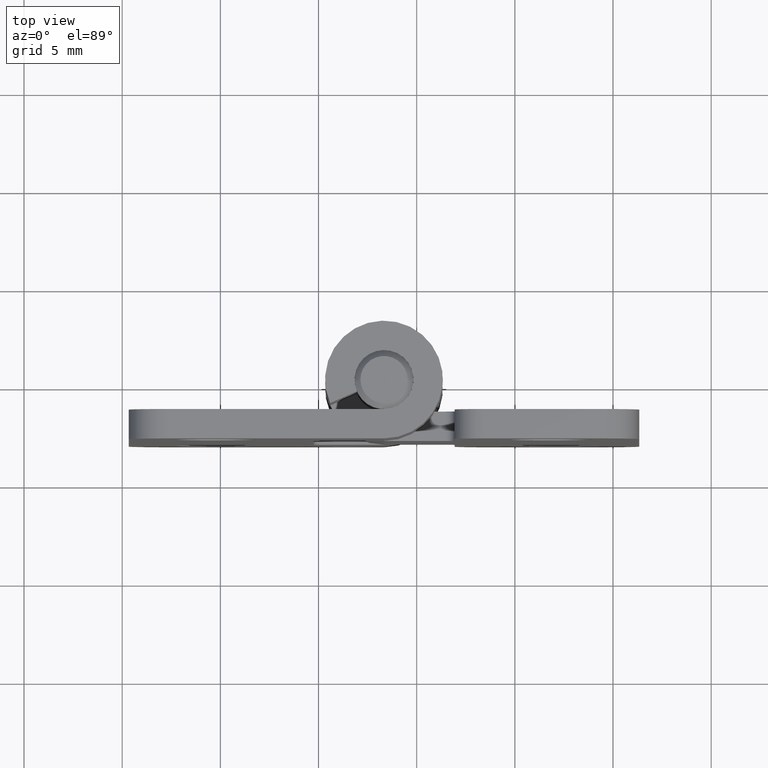
[diagram: clean part render]
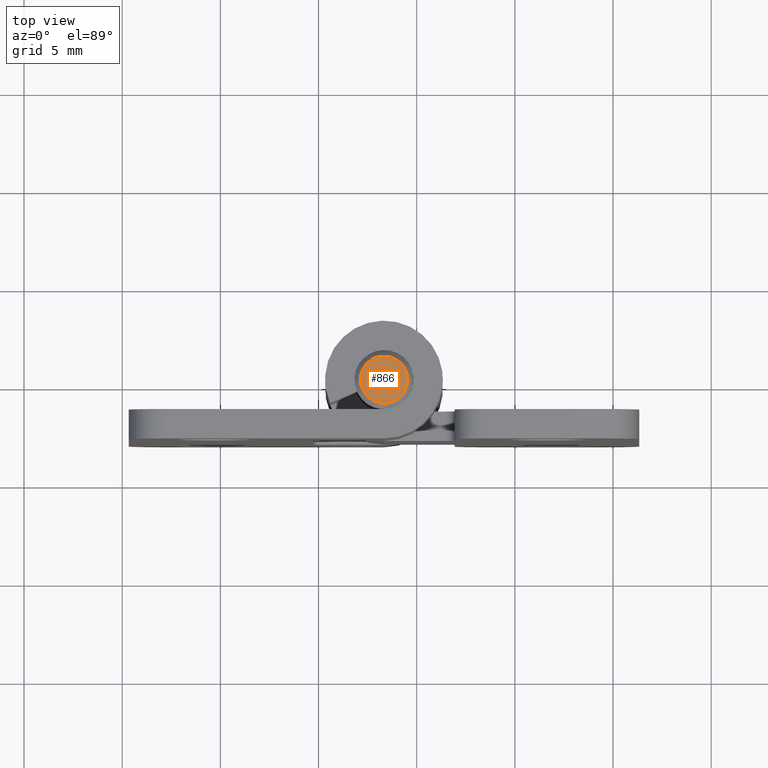
[diagram: same view with one face highlighted and labeled with its STEP entity id]
A machine part, top view. The second image highlights one B-rep face of the part: STEP entity #866.
In plain terms, the highlighted planar face has unit normal (0, -0, 1).
Its self-contained STEP definition (entity closure, byte-faithful):
#87=PLANE('',#969);
#136=FACE_OUTER_BOUND('',#204,.T.);
#204=EDGE_LOOP('',(#796));
#380=CIRCLE('',#968,1.2);
#460=VERTEX_POINT('',#1487);
#572=EDGE_CURVE('',#460,#460,#380,.T.);
#796=ORIENTED_EDGE('',*,*,#572,.F.);
#866=ADVANCED_FACE('',(#136),#87,.T.);
#968=AXIS2_PLACEMENT_3D('',#1488,#1234,#1235);
#969=AXIS2_PLACEMENT_3D('',#1489,#1236,#1237);
#1234=DIRECTION('center_axis',(0.,0.,-1.));
#1235=DIRECTION('ref_axis',(-1.,0.,0.));
#1236=DIRECTION('center_axis',(0.,0.,1.));
#1237=DIRECTION('ref_axis',(1.,0.,0.));
#1487=CARTESIAN_POINT('',(1.2,-1.46957615897683E-16,13.));
#1488=CARTESIAN_POINT('Origin',(0.,0.,13.));
#1489=CARTESIAN_POINT('Origin',(0.,0.,13.));